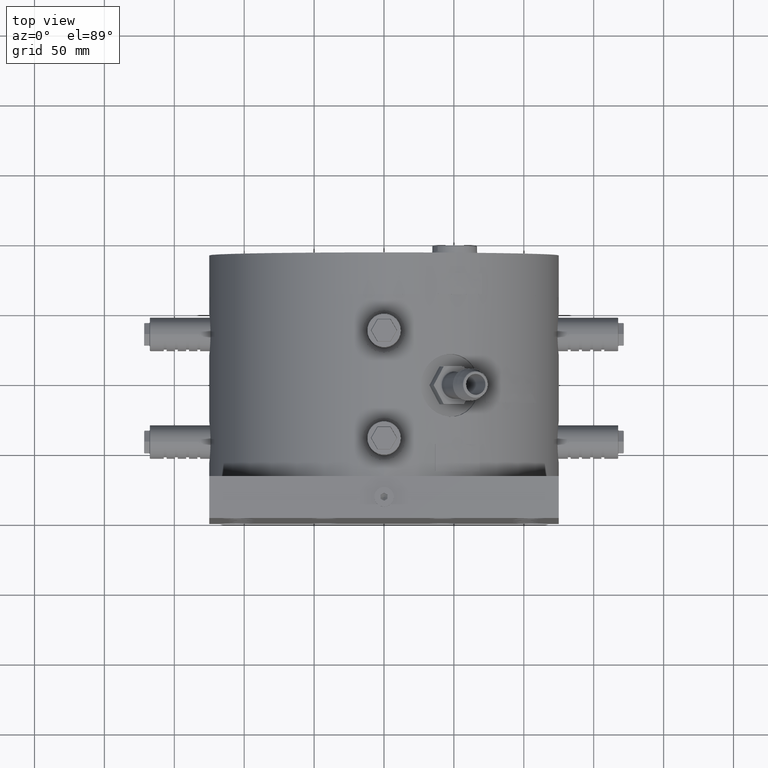
[diagram: clean part render]
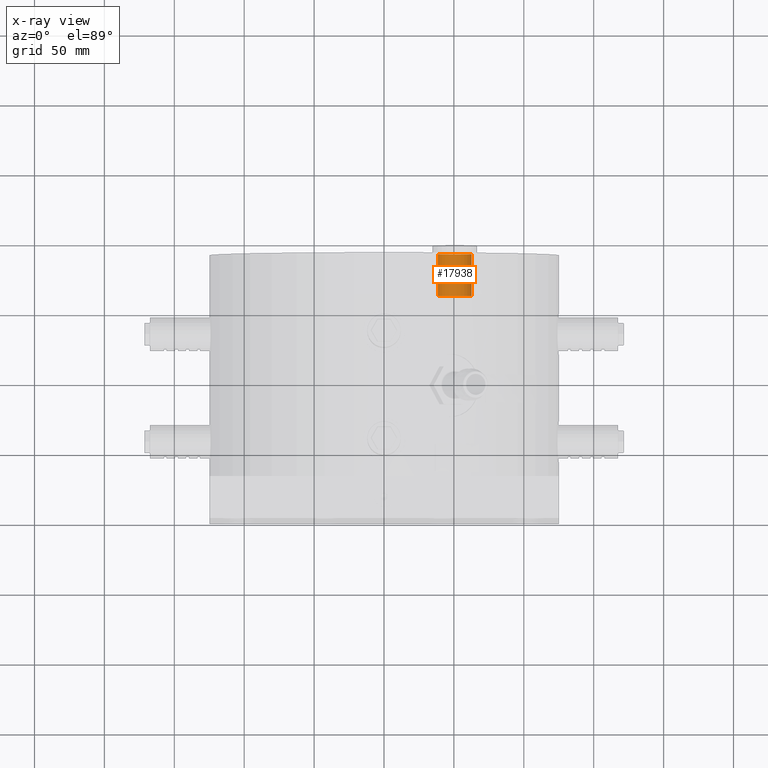
[diagram: x-ray — body ghosted, one internal face saturated and labeled with its STEP entity id]
A machine part, top view, then the same camera in x-ray: the body is ghosted and one INTERNAL B-rep face — a face not visible from any outside direction — is saturated and labeled: STEP entity #17938.
In plain terms, the highlighted cylindrical surface (edge-blend (fillet) strip) has radius 12.0585 mm, axis along (0, 1, 0).
Its self-contained STEP definition (entity closure, byte-faithful):
#541 = CYLINDRICAL_SURFACE ( 'NONE', #57138, 12.05850000000000000 ) ;
#733 = DIRECTION ( 'NONE',  ( 0.0000000000000000000, 1.000000000000000000, 0.0000000000000000000 ) ) ;
#6884 = DIRECTION ( 'NONE',  ( -1.000000000000000000, 0.0000000000000000000, -1.035784635488079800E-014 ) ) ;
#7599 = VECTOR ( 'NONE', #733, 1000.000000000000000 ) ;
#10313 = DIRECTION ( 'NONE',  ( 1.000000000000000000, 0.0000000000000000000, 1.035784635488080500E-014 ) ) ;
#11746 = CARTESIAN_POINT ( 'NONE',  ( 38.49963485483760200, 190.0000000000000000, 50.55813485483867700 ) ) ;
#15522 = AXIS2_PLACEMENT_3D ( 'NONE', #16036, #50246, #10313 ) ;
#16036 = CARTESIAN_POINT ( 'NONE',  ( 50.55813485483760400, 160.0000000000000000, 50.55813485483880500 ) ) ;
#17938 = ADVANCED_FACE ( 'NONE', ( #20063 ), #541, .F. ) ;
#20063 = FACE_OUTER_BOUND ( 'NONE', #26344, .T. ) ;
#20676 = DIRECTION ( 'NONE',  ( -1.000000000000000000, 0.0000000000000000000, -1.035784635488079800E-014 ) ) ;
#20881 = LINE ( 'NONE', #69478, #7599 ) ;
#21259 = DIRECTION ( 'NONE',  ( 0.0000000000000000000, 1.000000000000000000, 0.0000000000000000000 ) ) ;
#21589 = CIRCLE ( 'NONE', #15522, 12.05849999999999300 ) ;
#23137 = ORIENTED_EDGE ( 'NONE', *, *, #23438, .T. ) ;
#23438 = EDGE_CURVE ( 'NONE', #70270, #24462, #21589, .T. ) ;
#23521 = DIRECTION ( 'NONE',  ( 0.0000000000000000000, 1.000000000000000000, 0.0000000000000000000 ) ) ;
#23767 = CARTESIAN_POINT ( 'NONE',  ( 50.55813485483760400, 190.0000000000000000, 50.55813485483880500 ) ) ;
#24439 = CIRCLE ( 'NONE', #51319, 12.05850000000000000 ) ;
#24462 = VERTEX_POINT ( 'NONE', #61456 ) ;
#26298 = CARTESIAN_POINT ( 'NONE',  ( 62.61663485483760600, 190.0000000000000000, 50.55813485483892600 ) ) ;
#26344 = EDGE_LOOP ( 'NONE', ( #23137, #37015, #37900, #30839 ) ) ;
#28430 = EDGE_CURVE ( 'NONE', #45357, #36842, #24439, .T. ) ;
#30839 = ORIENTED_EDGE ( 'NONE', *, *, #42062, .F. ) ;
#36842 = VERTEX_POINT ( 'NONE', #11746 ) ;
#37015 = ORIENTED_EDGE ( 'NONE', *, *, #58027, .T. ) ;
#37325 = DIRECTION ( 'NONE',  ( 0.0000000000000000000, 1.000000000000000000, 0.0000000000000000000 ) ) ;
#37900 = ORIENTED_EDGE ( 'NONE', *, *, #28430, .T. ) ;
#38047 = CARTESIAN_POINT ( 'NONE',  ( 50.55813485483760400, 190.0000000000000000, 50.55813485483880500 ) ) ;
#42062 = EDGE_CURVE ( 'NONE', #70270, #36842, #73365, .T. ) ;
#42414 = CARTESIAN_POINT ( 'NONE',  ( 38.49963485483760200, 160.0000000000000000, 50.55813485483867700 ) ) ;
#44112 = VECTOR ( 'NONE', #21259, 1000.000000000000000 ) ;
#45357 = VERTEX_POINT ( 'NONE', #26298 ) ;
#50246 = DIRECTION ( 'NONE',  ( 0.0000000000000000000, -1.000000000000000000, 0.0000000000000000000 ) ) ;
#51319 = AXIS2_PLACEMENT_3D ( 'NONE', #23767, #23521, #6884 ) ;
#57138 = AXIS2_PLACEMENT_3D ( 'NONE', #38047, #37325, #20676 ) ;
#58027 = EDGE_CURVE ( 'NONE', #24462, #45357, #20881, .T. ) ;
#61456 = CARTESIAN_POINT ( 'NONE',  ( 62.61663485483760600, 160.0000000000000000, 50.55813485483892600 ) ) ;
#69478 = CARTESIAN_POINT ( 'NONE',  ( 62.61663485483759200, 190.0000000000000000, 50.55813485483892600 ) ) ;
#70270 = VERTEX_POINT ( 'NONE', #42414 ) ;
#70417 = CARTESIAN_POINT ( 'NONE',  ( 38.49963485483760200, 190.0000000000000000, 50.55813485483867700 ) ) ;
#73365 = LINE ( 'NONE', #70417, #44112 ) ;